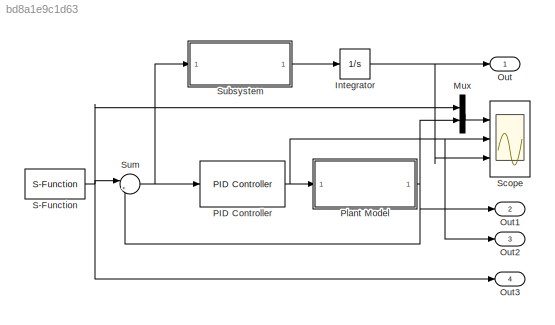
MODEL mdl_bd8a1e9c1d63
KIND model
CONFIG AbsTol = auto
CONFIG EnableMultiTasking = on
CONFIG FixedStep = auto
CONFIG MaxStep = 1000
CONFIG MinStep = auto
CONFIG RelTol = 1e-5
CONFIG SampleTimeConstraint = Unconstrained
CONFIG SolverName = ode15s
CONFIG StartTime = 0.0
CONFIG StopTime = 10.0
BLOCK [Integrator] Integrator
  Ports = [1, 1]
BLOCK [Mux] Mux
  DisplayOption = bar
  Inputs = 2
  Ports = [2, 1]
BLOCK [Outport] Out
BLOCK [Outport] Out1
  Port = 2
BLOCK [Outport] Out2
  Port = 3
BLOCK [Outport] Out3
  Port = 4
BLOCK [Reference] PID Controller  REF=slpidlib/PID Controller
  Ports = [1, 1]
  SourceBlock = slpidlib/PID Controller
  SourceProductBaseCode = SL
  SourceType = PID 1dof
BLOCK [ModelReference] Plant Model
  ModelNameDialog = q2.mdl
  ModelReferenceVersion = 1.2
  Ports = [1, 1]
BLOCK [S-Function] S-Function
  EnableBusSupport = off
  FunctionName = multi_step
  Parameters = t_seq, y_seq
  Ports = [0, 1]
  SFcnIsStateOwnerBlock = off
  SFunctionDeploymentMode = off
BLOCK [Scope] Scope
  Floating = off
  NumInputPorts = 3
  Ports = [3]
  ScopeSpecificationString = Simulink.scopes.TimeScopeBlockCfg('CurrentConfiguration', extmgr.ConfigurationSet(extmgr.Configuration('Core','General UI',true),extmgr.Configuration('Core','Source UI',true),extmgr.Configuration('Sources','WiredSimulink',true,'DataLoggingVariableName','yy','DataLoggingSaveFormat','StructureWithTime','DataLoggingDecimation','1','DataLoggingDecimateData',true),extmgr.Configuration('Visuals','Time D...<+2974ch>
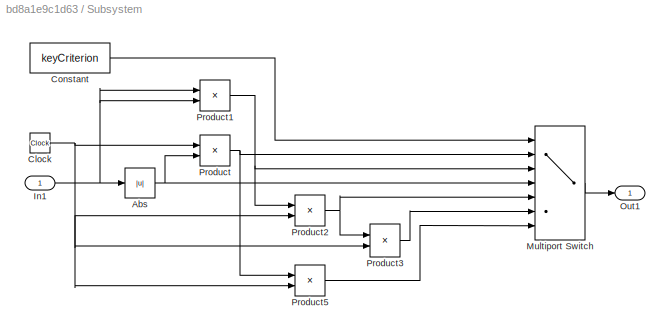
BLOCK [SubSystem] Subsystem
  Ports = [1, 1]
  RequestExecContextInheritance = off
BLOCK [Abs] Subsystem/Abs
  SaturateOnIntegerOverflow = off
BLOCK [Clock] Subsystem/Clock
BLOCK [Constant] Subsystem/Constant
  Value = keyCriterion
BLOCK [Inport] Subsystem/In1
BLOCK [MultiPortSwitch] Subsystem/Multiport Switch
  InputSameDT = off
  Inputs = 6
  Ports = [7, 1]
  SaturateOnIntegerOverflow = off
BLOCK [Outport] Subsystem/Out1
BLOCK [Product] Subsystem/Product
  Ports = [2, 1]
  RndMeth = Zero
BLOCK [Product] Subsystem/Product1
  Ports = [2, 1]
  RndMeth = Zero
BLOCK [Product] Subsystem/Product2
  Ports = [2, 1]
  RndMeth = Zero
BLOCK [Product] Subsystem/Product3
  Ports = [2, 1]
  RndMeth = Zero
BLOCK [Product] Subsystem/Product5
  Ports = [2, 1]
  RndMeth = Zero
BLOCK [Sum] Sum
  Inputs = |+-
  Ports = [2, 1]
NET Integrator:1 -> Out:1, Scope:3
LINE Mux:1 -> Scope:1
NET PID Controller:1 -> Out2:1, Plant Model:1, Scope:2
NET Plant Model:1 -> Mux:2, Out1:1, Sum:2
NET S-Function:1 -> Mux:1, Out3:1, Sum:1
NET Subsystem/Abs:1 -> Subsystem/Multiport Switch:4, Subsystem/Product:2
NET Subsystem/Clock:1 -> Subsystem/Product2:2, Subsystem/Product3:2, Subsystem/Product5:2, Subsystem/Product:1
LINE Subsystem/Constant:1 -> Subsystem/Multiport Switch:1
NET Subsystem/In1:1 -> Subsystem/Abs:1, Subsystem/Product1:1, Subsystem/Product1:2
LINE Subsystem/Multiport Switch:1 -> Subsystem/Out1:1
NET Subsystem/Product1:1 -> Subsystem/Multiport Switch:3, Subsystem/Product2:1
NET Subsystem/Product2:1 -> Subsystem/Multiport Switch:5, Subsystem/Product3:1
LINE Subsystem/Product3:1 -> Subsystem/Multiport Switch:6
LINE Subsystem/Product5:1 -> Subsystem/Multiport Switch:7
NET Subsystem/Product:1 -> Subsystem/Multiport Switch:2, Subsystem/Product5:1
LINE Subsystem:1 -> Integrator:1
NET Sum:1 -> PID Controller:1, Subsystem:1
note: NET lines group one-source signal fan-out (src -> all destinations, sorted); 1:1 wires keep LINE
